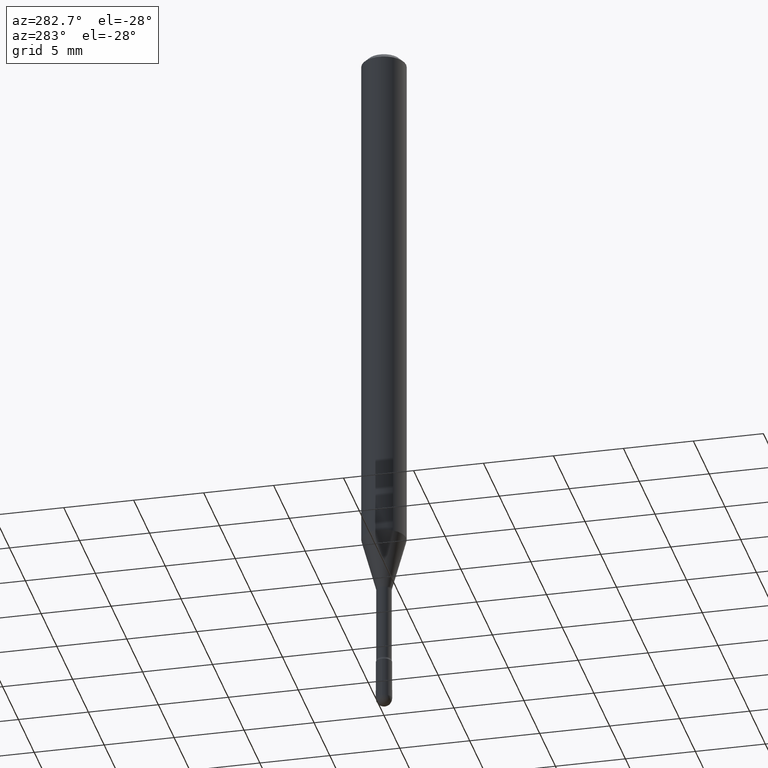
[diagram: clean part render]
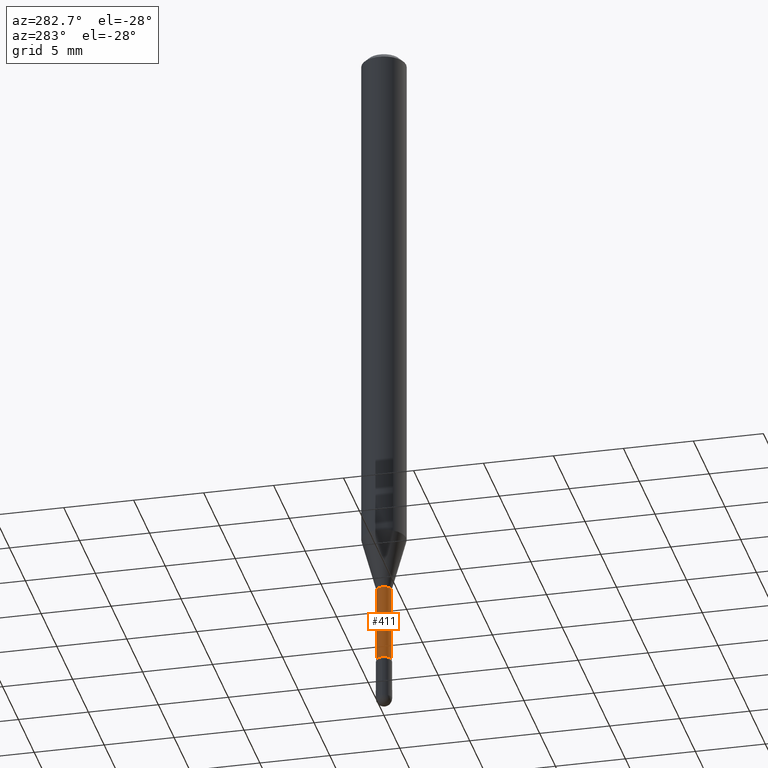
[diagram: same view with one face highlighted and labeled with its STEP entity id]
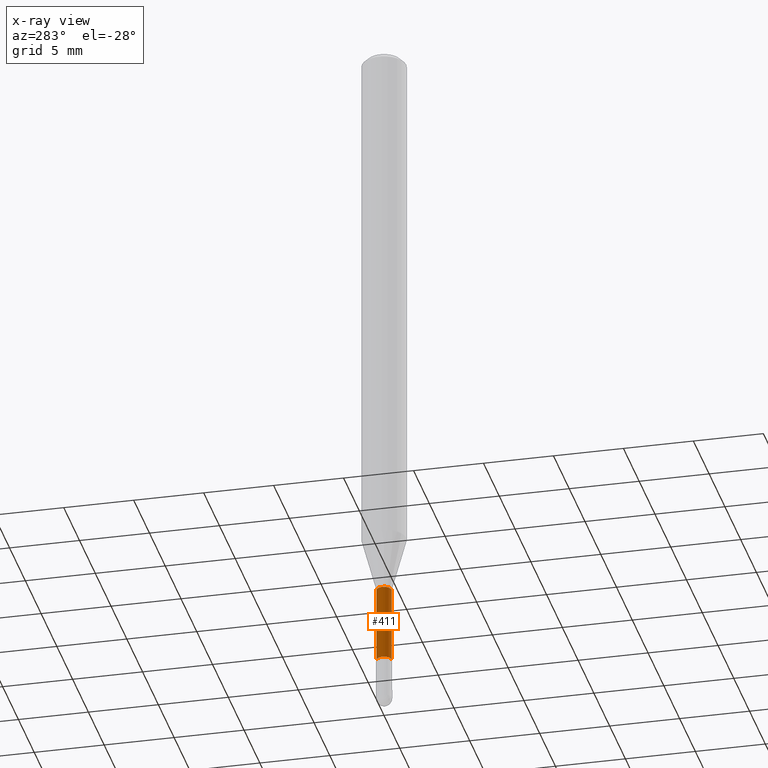
[diagram: x-ray of the same camera — body ghosted, the highlighted face saturated]
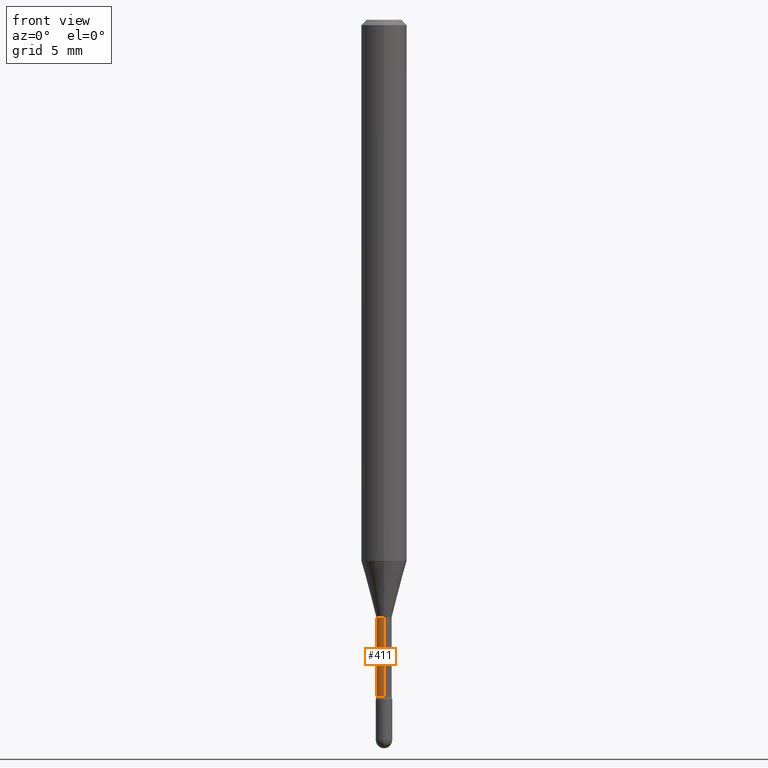
[diagram: same view with one face highlighted and labeled with its STEP entity id]
A machine part, auxiliary view. The second image highlights one B-rep face of the part: STEP entity #411.
The next image is the same camera in x-ray: the body ghosted, the highlighted face saturated — about 0% of this face is hidden behind the body in this view.
A second angle (front view) of the same face is appended — the face is thin or edge-on in the first view.
In plain terms, the highlighted cylindrical surface (edge-blend (fillet) strip) has radius 0.5372 mm, axis along (-0, 0, 1).
Its self-contained STEP definition (entity closure, byte-faithful):
#5 = AXIS2_PLACEMENT_3D ( 'NONE', #416, #22, #192 ) ;
#9 = VERTEX_POINT ( 'NONE', #175 ) ;
#15 = ORIENTED_EDGE ( 'NONE', *, *, #201, .T. ) ;
#18 = CIRCLE ( 'NONE', #189, 0.02114999999999999172 ) ;
#19 = VERTEX_POINT ( 'NONE', #309 ) ;
#22 = DIRECTION ( 'NONE',  ( -2.445440132867117346E-29, 3.491522400666532980E-15, 1.000000000000000000 ) ) ;
#51 = CARTESIAN_POINT ( 'NONE',  ( -1.476896606330192412E-16, -0.02115000000000651428, -1.858780876267511539 ) ) ;
#58 = LINE ( 'NONE', #404, #438 ) ;
#65 = CYLINDRICAL_SURFACE ( 'NONE', #5, 0.02115000000000000907 ) ;
#80 = DIRECTION ( 'NONE',  ( -2.445440132867117626E-29, 3.491522400666532586E-15, 1.000000000000000000 ) ) ;
#92 = AXIS2_PLACEMENT_3D ( 'NONE', #511, #376, #421 ) ;
#103 = DIRECTION ( 'NONE',  ( -2.445440132867117346E-29, 3.491522400666532980E-15, 1.000000000000000000 ) ) ;
#119 = VERTEX_POINT ( 'NONE', #271 ) ;
#175 = CARTESIAN_POINT ( 'NONE',  ( -1.476896606330243195E-16, -0.02115000000000572325, -1.641974787463811314 ) ) ;
#189 = AXIS2_PLACEMENT_3D ( 'NONE', #540, #103, #370 ) ;
#192 = DIRECTION ( 'NONE',  ( -6.982962677686266711E-15, -1.000000000000000000, 3.491522400666531008E-15 ) ) ;
#201 = EDGE_CURVE ( 'NONE', #250, #9, #256, .T. ) ;
#238 = ORIENTED_EDGE ( 'NONE', *, *, #461, .T. ) ;
#250 = VERTEX_POINT ( 'NONE', #51 ) ;
#253 = VECTOR ( 'NONE', #80, 39.37007874015748143 ) ;
#256 = LINE ( 'NONE', #563, #253 ) ;
#271 = CARTESIAN_POINT ( 'NONE',  ( 1.502797886133066626E-16, 0.02114999999999426020, -1.641974787463811314 ) ) ;
#309 = CARTESIAN_POINT ( 'NONE',  ( 1.550759520796874516E-16, 0.02114999999999353855, -1.858780876267511539 ) ) ;
#315 = EDGE_CURVE ( 'NONE', #19, #119, #58, .T. ) ;
#353 = EDGE_CURVE ( 'NONE', #119, #9, #18, .T. ) ;
#370 = DIRECTION ( 'NONE',  ( -6.982962677686266711E-15, -1.000000000000000000, 0.000000000000000000 ) ) ;
#376 = DIRECTION ( 'NONE',  ( -2.445440132867117346E-29, 3.491522400666532980E-15, 1.000000000000000000 ) ) ;
#387 = ORIENTED_EDGE ( 'NONE', *, *, #315, .F. ) ;
#404 = CARTESIAN_POINT ( 'NONE',  ( 1.502797886132612291E-16, 0.02115000000000000907, 4.042277001171488354E-16 ) ) ;
#411 = ADVANCED_FACE ( 'NONE', ( #441 ), #65, .T. ) ;
#416 = CARTESIAN_POINT ( 'NONE',  ( -1.169113584055446105E-44, 1.669184350826100908E-30, 4.780733988912460139E-16 ) ) ;
#421 = DIRECTION ( 'NONE',  ( -6.982962677686266711E-15, -1.000000000000000000, 0.000000000000000000 ) ) ;
#438 = VECTOR ( 'NONE', #444, 39.37007874015748143 ) ;
#441 = FACE_OUTER_BOUND ( 'NONE', #466, .T. ) ;
#444 = DIRECTION ( 'NONE',  ( -2.445440132867117626E-29, 3.491522400666532586E-15, 1.000000000000000000 ) ) ;
#461 = EDGE_CURVE ( 'NONE', #19, #250, #477, .T. ) ;
#466 = EDGE_LOOP ( 'NONE', ( #387, #238, #15, #510 ) ) ;
#477 = CIRCLE ( 'NONE', #92, 0.02115000000000002642 ) ;
#510 = ORIENTED_EDGE ( 'NONE', *, *, #353, .F. ) ;
#511 = CARTESIAN_POINT ( 'NONE',  ( 4.545537353030480004E-29, -6.489975067418584328E-15, -1.858780876267511539 ) ) ;
#540 = CARTESIAN_POINT ( 'NONE',  ( 4.015351042419959195E-29, -5.732991751759567442E-15, -1.641974787463811314 ) ) ;
#563 = CARTESIAN_POINT ( 'NONE',  ( -1.476896606330646007E-16, -0.02115000000000000907, 5.519190976653432418E-16 ) ) ;